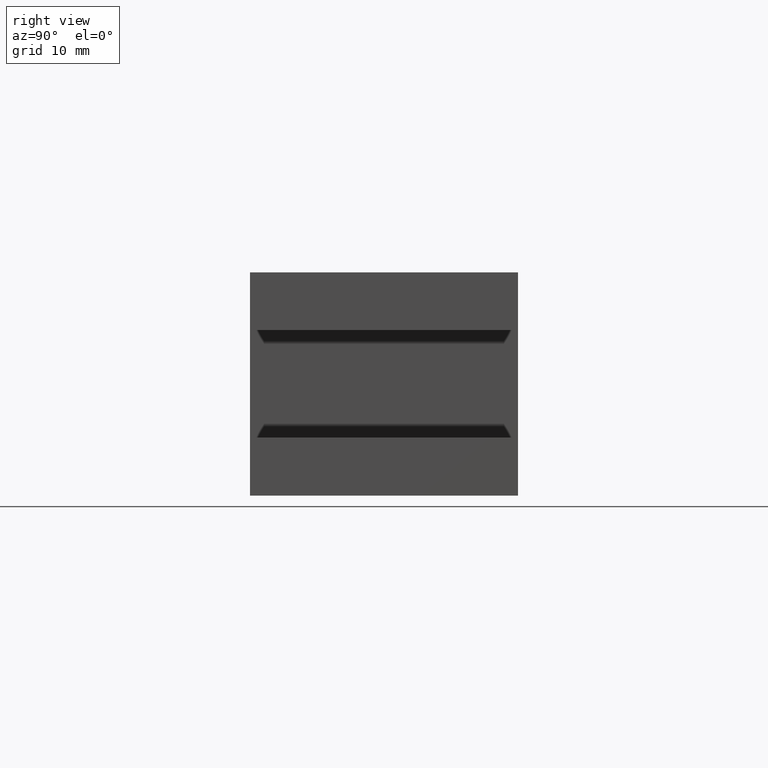
[diagram: clean part render]
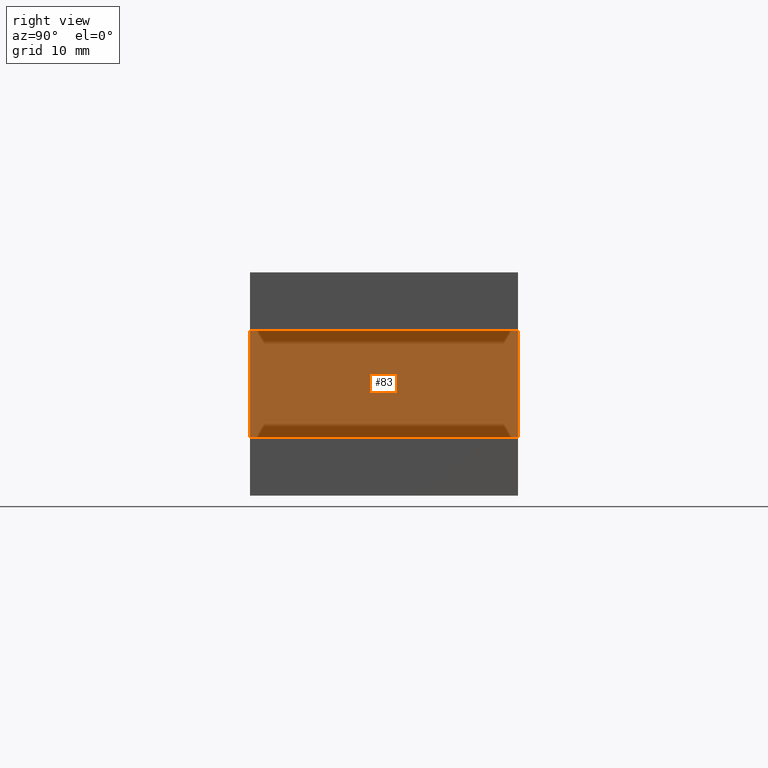
[diagram: same view with one face highlighted and labeled with its STEP entity id]
A machine part, right view. The second image highlights one B-rep face of the part: STEP entity #83.
In plain terms, the highlighted planar face has unit normal (-1, 0, 0).
Its self-contained STEP definition (entity closure, byte-faithful):
#44=CARTESIAN_POINT('',(47.825283991875160,18.038875658777535,6.499999999999995));
#45=DIRECTION('',(-1.0,0.0,0.0));
#46=DIRECTION('',(0.0,0.0,1.0));
#47=AXIS2_PLACEMENT_3D('',#44,#45,#46);
#48=PLANE('',#47);
#49=CARTESIAN_POINT('',(47.825283991875168,-11.961124341222465,6.499999999999995));
#50=VERTEX_POINT('',#49);
#51=CARTESIAN_POINT('',(47.825283991875168,-11.961124341222465,18.499999999999996));
#52=VERTEX_POINT('',#51);
#53=CARTESIAN_POINT('',(47.825283991875168,-11.961124341222465,6.499999999999995));
#54=DIRECTION('',(0.0,0.0,1.0));
#55=VECTOR('',#54,12.000000000000002);
#56=LINE('',#53,#55);
#57=EDGE_CURVE('',#50,#52,#56,.T.);
#58=ORIENTED_EDGE('',*,*,#57,.F.);
#59=CARTESIAN_POINT('',(47.825283991875160,18.038875658777535,6.499999999999995));
#60=VERTEX_POINT('',#59);
#61=CARTESIAN_POINT('',(47.825283991875160,18.038875658777535,6.499999999999995));
#62=DIRECTION('',(0.0,-1.0,0.0));
#63=VECTOR('',#62,30.0);
#64=LINE('',#61,#63);
#65=EDGE_CURVE('',#60,#50,#64,.T.);
#66=ORIENTED_EDGE('',*,*,#65,.F.);
#67=CARTESIAN_POINT('',(47.825283991875160,18.038875658777535,18.499999999999996));
#68=VERTEX_POINT('',#67);
#69=CARTESIAN_POINT('',(47.825283991875160,18.038875658777535,18.499999999999996));
#70=DIRECTION('',(0.0,0.0,-1.0));
#71=VECTOR('',#70,12.000000000000002);
#72=LINE('',#69,#71);
#73=EDGE_CURVE('',#68,#60,#72,.T.);
#74=ORIENTED_EDGE('',*,*,#73,.F.);
#75=CARTESIAN_POINT('',(47.825283991875160,18.038875658777535,18.499999999999996));
#76=DIRECTION('',(0.0,-1.0,0.0));
#77=VECTOR('',#76,30.0);
#78=LINE('',#75,#77);
#79=EDGE_CURVE('',#68,#52,#78,.T.);
#80=ORIENTED_EDGE('',*,*,#79,.T.);
#81=EDGE_LOOP('',(#58,#66,#74,#80));
#82=FACE_OUTER_BOUND('',#81,.T.);
#83=ADVANCED_FACE('',(#82),#48,.F.);